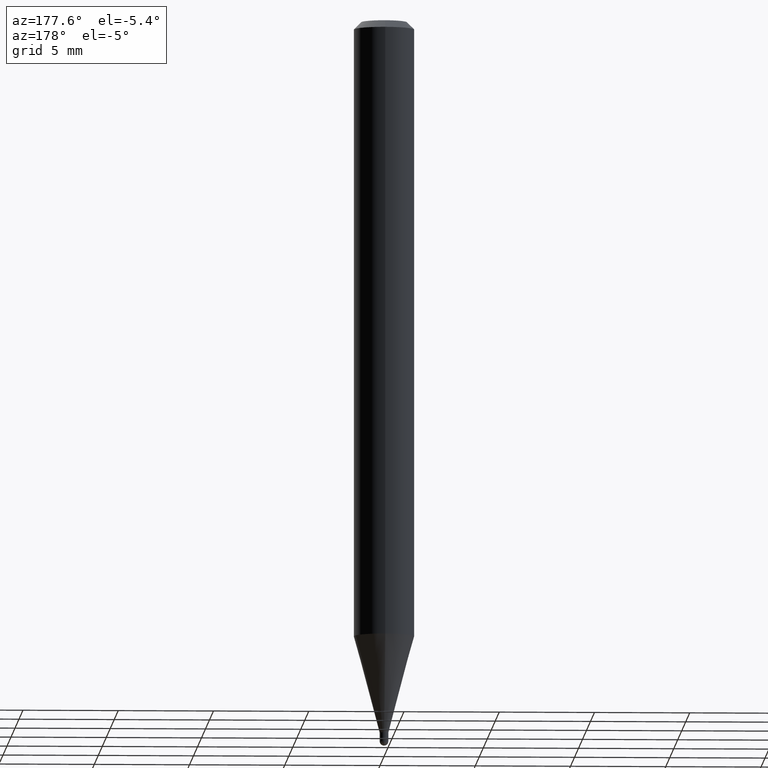
[diagram: clean part render]
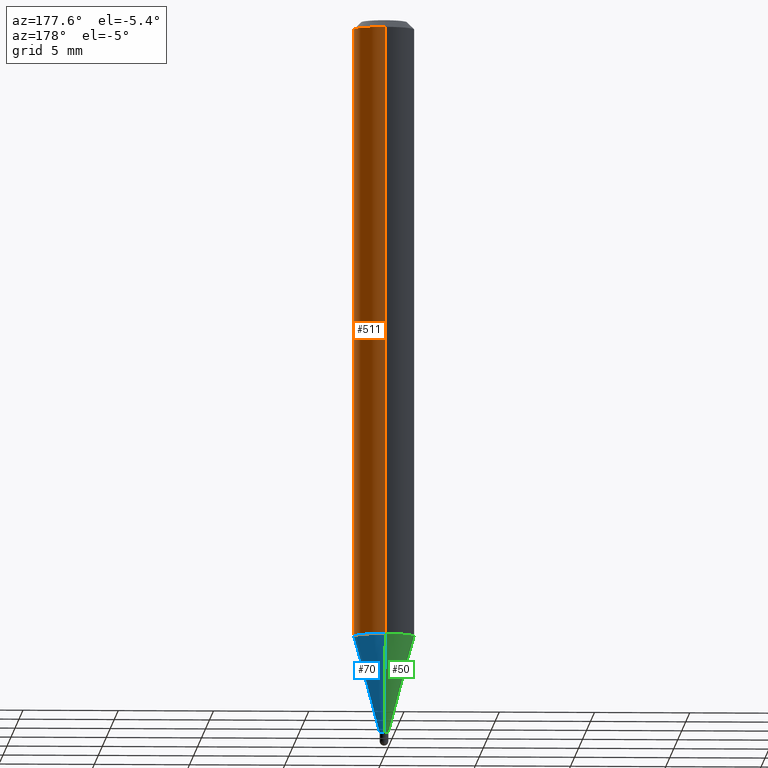
[diagram: same view with three faces highlighted in distinct colors, each labeled with its STEP entity id]
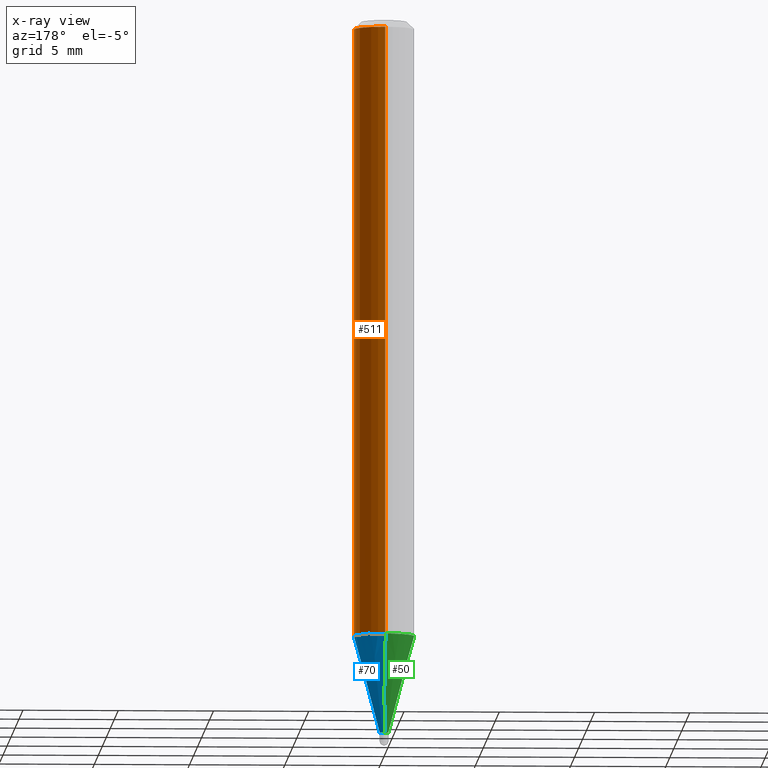
[diagram: x-ray of the same camera — body ghosted, the three highlighted faces saturated]
A machine part, auxiliary view with three faces highlighted in distinct colors.
The next image is the same camera in x-ray (body ghosted, the three faces saturated) — at least one of them is partly hidden behind the body in this view.
Their STEP definitions:

[orange] entity #511 — the highlighted cylindrical surface (edge-blend (fillet) strip) has radius 1.5875 mm, axis along (-0, 0, 1).
#21 = DIRECTION ( 'NONE',  ( -6.982962677686265922E-15, -1.000000000000000000, 3.483106191921935554E-15 ) ) ;
#27 = CIRCLE ( 'NONE', #425, 0.06250000000000000000 ) ;
#47 = CARTESIAN_POINT ( 'NONE',  ( 0.000000000000000000, 0.000000000000000000, 0.000000000000000000 ) ) ;
#65 = CIRCLE ( 'NONE', #361, 0.06250000000000000000 ) ;
#87 = FACE_OUTER_BOUND ( 'NONE', #127, .T. ) ;
#98 = EDGE_CURVE ( 'NONE', #103, #324, #266, .T. ) ;
#99 = CARTESIAN_POINT ( 'NONE',  ( 4.440892098500935790E-16, 0.06249999999999554523, -1.273335281795072493 ) ) ;
#103 = VERTEX_POINT ( 'NONE', #507 ) ;
#107 = DIRECTION ( 'NONE',  ( -2.445461654615416664E-29, 3.491491580298026496E-15, 1.000000000000000000 ) ) ;
#118 = CARTESIAN_POINT ( 'NONE',  ( -4.364351673553912750E-16, -0.06250000000000005551, -0.01499999999999984852 ) ) ;
#127 = EDGE_LOOP ( 'NONE', ( #375, #129, #459, #261 ) ) ;
#129 = ORIENTED_EDGE ( 'NONE', *, *, #376, .T. ) ;
#175 = AXIS2_PLACEMENT_3D ( 'NONE', #47, #210, #370 ) ;
#210 = DIRECTION ( 'NONE',  ( -2.445461654615416664E-29, 3.491491580298026496E-15, 1.000000000000000000 ) ) ;
#214 = DIRECTION ( 'NONE',  ( -2.445461654615416664E-29, 3.491491580298026496E-15, 1.000000000000000000 ) ) ;
#247 = CYLINDRICAL_SURFACE ( 'NONE', #175, 0.06250000000000000000 ) ;
#248 = DIRECTION ( 'NONE',  ( -2.445461654615416664E-29, 3.491491580298026496E-15, 1.000000000000000000 ) ) ;
#258 = EDGE_CURVE ( 'NONE', #103, #496, #27, .T. ) ;
#261 = ORIENTED_EDGE ( 'NONE', *, *, #98, .F. ) ;
#266 = LINE ( 'NONE', #304, #492 ) ;
#282 = DIRECTION ( 'NONE',  ( -6.982962677686265922E-15, -1.000000000000000000, 4.370956789862821150E-15 ) ) ;
#304 = CARTESIAN_POINT ( 'NONE',  ( -4.364351673553916201E-16, -0.06250000000000000000, 2.182182237686266560E-16 ) ) ;
#322 = DIRECTION ( 'NONE',  ( -2.445461654615416664E-29, 3.491491580298026496E-15, 1.000000000000000000 ) ) ;
#324 = VERTEX_POINT ( 'NONE', #118 ) ;
#334 = CARTESIAN_POINT ( 'NONE',  ( 4.440892098500625669E-16, 0.06250000000000000000, -2.182182237686266560E-16 ) ) ;
#361 = AXIS2_PLACEMENT_3D ( 'NONE', #499, #248, #21 ) ;
#370 = DIRECTION ( 'NONE',  ( -6.982962677686265922E-15, -1.000000000000000000, 3.491491580298026496E-15 ) ) ;
#375 = ORIENTED_EDGE ( 'NONE', *, *, #258, .T. ) ;
#376 = EDGE_CURVE ( 'NONE', #496, #485, #421, .T. ) ;
#396 = CARTESIAN_POINT ( 'NONE',  ( 3.113892605098765118E-29, -4.445839415283910039E-15, -1.273335281795072271 ) ) ;
#409 = CARTESIAN_POINT ( 'NONE',  ( 4.440892098500938748E-16, 0.06249999999999995143, -0.01500000000000028394 ) ) ;
#421 = LINE ( 'NONE', #334, #478 ) ;
#425 = AXIS2_PLACEMENT_3D ( 'NONE', #396, #322, #282 ) ;
#455 = EDGE_CURVE ( 'NONE', #324, #485, #65, .T. ) ;
#459 = ORIENTED_EDGE ( 'NONE', *, *, #455, .F. ) ;
#478 = VECTOR ( 'NONE', #214, 39.37007874015748143 ) ;
#485 = VERTEX_POINT ( 'NONE', #409 ) ;
#492 = VECTOR ( 'NONE', #107, 39.37007874015748143 ) ;
#496 = VERTEX_POINT ( 'NONE', #99 ) ;
#499 = CARTESIAN_POINT ( 'NONE',  ( 3.668192481923141303E-31, -5.237237370447062670E-17, -0.01500000000000006710 ) ) ;
#507 = CARTESIAN_POINT ( 'NONE',  ( -4.364351673553605587E-16, -0.06250000000000444089, -1.273335281795072049 ) ) ;
#511 = ADVANCED_FACE ( 'NONE', ( #87 ), #247, .T. ) ;

[blue] entity #70 — the highlighted conical surface has half-angle 15 deg.
#27 = CIRCLE ( 'NONE', #425, 0.06250000000000000000 ) ;
#55 = DIRECTION ( 'NONE',  ( -6.982962677686265133E-15, -1.000000000000000000, 0.000000000000000000 ) ) ;
#56 = CONICAL_SURFACE ( 'NONE', #295, 0.009000000000000197078, 0.2617993877991573459 ) ;
#58 = CARTESIAN_POINT ( 'NONE',  ( 6.394884621844643349E-17, 0.008999999999995053623, -1.473000000000000087 ) ) ;
#70 = ADVANCED_FACE ( 'NONE', ( #348 ), #56, .T. ) ;
#81 = EDGE_CURVE ( 'NONE', #303, #419, #94, .T. ) ;
#94 = CIRCLE ( 'NONE', #196, 0.009000000000000197078 ) ;
#99 = CARTESIAN_POINT ( 'NONE',  ( 4.440892098500935790E-16, 0.06249999999999554523, -1.273335281795072493 ) ) ;
#103 = VERTEX_POINT ( 'NONE', #507 ) ;
#108 = VECTOR ( 'NONE', #296, 39.37007874015748143 ) ;
#130 = LINE ( 'NONE', #176, #297 ) ;
#135 = CARTESIAN_POINT ( 'NONE',  ( 2.540190280342702096E-16, 0.008999999999995053623, -1.473000000000000087 ) ) ;
#139 = DIRECTION ( 'NONE',  ( -2.445461654615416664E-29, 3.491491580298026496E-15, 1.000000000000000000 ) ) ;
#176 = CARTESIAN_POINT ( 'NONE',  ( -6.284666409914174820E-17, -0.009000000000005338799, -1.473000000000000087 ) ) ;
#179 = LINE ( 'NONE', #58, #108 ) ;
#196 = AXIS2_PLACEMENT_3D ( 'NONE', #252, #221, #55 ) ;
#221 = DIRECTION ( 'NONE',  ( -2.445461654615416664E-29, 3.491491580298026496E-15, 1.000000000000000000 ) ) ;
#227 = ORIENTED_EDGE ( 'NONE', *, *, #258, .F. ) ;
#229 = ORIENTED_EDGE ( 'NONE', *, *, #388, .F. ) ;
#243 = ORIENTED_EDGE ( 'NONE', *, *, #494, .T. ) ;
#252 = CARTESIAN_POINT ( 'NONE',  ( 3.602165017248509387E-29, -5.142967097778992648E-15, -1.473000000000000087 ) ) ;
#255 = EDGE_LOOP ( 'NONE', ( #479, #243, #227, #229 ) ) ;
#258 = EDGE_CURVE ( 'NONE', #103, #496, #27, .T. ) ;
#282 = DIRECTION ( 'NONE',  ( -6.982962677686265922E-15, -1.000000000000000000, 4.370956789862821150E-15 ) ) ;
#295 = AXIS2_PLACEMENT_3D ( 'NONE', #424, #139, #460 ) ;
#296 = DIRECTION ( 'NONE',  ( 1.839019923739648830E-15, 0.2588190451025317862, 0.9659258262890653146 ) ) ;
#297 = VECTOR ( 'NONE', #340, 39.37007874015748854 ) ;
#303 = VERTEX_POINT ( 'NONE', #319 ) ;
#319 = CARTESIAN_POINT ( 'NONE',  ( -6.284666409914174820E-17, -0.009000000000005338799, -1.473000000000000087 ) ) ;
#322 = DIRECTION ( 'NONE',  ( -2.445461654615416664E-29, 3.491491580298026496E-15, 1.000000000000000000 ) ) ;
#340 = DIRECTION ( 'NONE',  ( -1.807323732225377865E-15, -0.2588190451025250138, 0.9659258262890670910 ) ) ;
#348 = FACE_OUTER_BOUND ( 'NONE', #255, .T. ) ;
#388 = EDGE_CURVE ( 'NONE', #303, #103, #130, .T. ) ;
#396 = CARTESIAN_POINT ( 'NONE',  ( 3.113892605098765118E-29, -4.445839415283910039E-15, -1.273335281795072271 ) ) ;
#419 = VERTEX_POINT ( 'NONE', #135 ) ;
#424 = CARTESIAN_POINT ( 'NONE',  ( 3.602165017248509387E-29, -5.142967097778992648E-15, -1.473000000000000087 ) ) ;
#425 = AXIS2_PLACEMENT_3D ( 'NONE', #396, #322, #282 ) ;
#460 = DIRECTION ( 'NONE',  ( -6.982962677686265133E-15, -1.000000000000000000, 0.000000000000000000 ) ) ;
#479 = ORIENTED_EDGE ( 'NONE', *, *, #81, .T. ) ;
#494 = EDGE_CURVE ( 'NONE', #419, #496, #179, .T. ) ;
#496 = VERTEX_POINT ( 'NONE', #99 ) ;
#507 = CARTESIAN_POINT ( 'NONE',  ( -4.364351673553605587E-16, -0.06250000000000444089, -1.273335281795072049 ) ) ;

[green] entity #50 — the highlighted conical surface has half-angle 15 deg.
#2 = DIRECTION ( 'NONE',  ( -2.445461654615416664E-29, 3.491491580298026496E-15, 1.000000000000000000 ) ) ;
#50 = ADVANCED_FACE ( 'NONE', ( #372 ), #351, .T. ) ;
#58 = CARTESIAN_POINT ( 'NONE',  ( 6.394884621844643349E-17, 0.008999999999995053623, -1.473000000000000087 ) ) ;
#74 = CARTESIAN_POINT ( 'NONE',  ( 3.113892605098765118E-29, -4.445839415283910039E-15, -1.273335281795072271 ) ) ;
#90 = CARTESIAN_POINT ( 'NONE',  ( 3.602165017248509387E-29, -5.142967097778992648E-15, -1.473000000000000087 ) ) ;
#99 = CARTESIAN_POINT ( 'NONE',  ( 4.440892098500935790E-16, 0.06249999999999554523, -1.273335281795072493 ) ) ;
#103 = VERTEX_POINT ( 'NONE', #507 ) ;
#106 = EDGE_LOOP ( 'NONE', ( #328, #341, #428, #298 ) ) ;
#108 = VECTOR ( 'NONE', #296, 39.37007874015748143 ) ;
#130 = LINE ( 'NONE', #176, #297 ) ;
#135 = CARTESIAN_POINT ( 'NONE',  ( 2.540190280342702096E-16, 0.008999999999995053623, -1.473000000000000087 ) ) ;
#156 = EDGE_CURVE ( 'NONE', #496, #103, #367, .T. ) ;
#159 = CIRCLE ( 'NONE', #287, 0.009000000000000197078 ) ;
#166 = DIRECTION ( 'NONE',  ( -6.982962677686265133E-15, -1.000000000000000000, 0.000000000000000000 ) ) ;
#169 = CARTESIAN_POINT ( 'NONE',  ( 3.602165017248509387E-29, -5.142967097778992648E-15, -1.473000000000000087 ) ) ;
#176 = CARTESIAN_POINT ( 'NONE',  ( -6.284666409914174820E-17, -0.009000000000005338799, -1.473000000000000087 ) ) ;
#179 = LINE ( 'NONE', #58, #108 ) ;
#215 = DIRECTION ( 'NONE',  ( -2.445461654615416664E-29, 3.491491580298026496E-15, 1.000000000000000000 ) ) ;
#270 = DIRECTION ( 'NONE',  ( -6.982962677686265922E-15, -1.000000000000000000, 4.370956789862821150E-15 ) ) ;
#273 = AXIS2_PLACEMENT_3D ( 'NONE', #74, #2, #270 ) ;
#279 = AXIS2_PLACEMENT_3D ( 'NONE', #169, #335, #166 ) ;
#287 = AXIS2_PLACEMENT_3D ( 'NONE', #90, #215, #343 ) ;
#296 = DIRECTION ( 'NONE',  ( 1.839019923739648830E-15, 0.2588190451025317862, 0.9659258262890653146 ) ) ;
#297 = VECTOR ( 'NONE', #340, 39.37007874015748854 ) ;
#298 = ORIENTED_EDGE ( 'NONE', *, *, #156, .F. ) ;
#303 = VERTEX_POINT ( 'NONE', #319 ) ;
#319 = CARTESIAN_POINT ( 'NONE',  ( -6.284666409914174820E-17, -0.009000000000005338799, -1.473000000000000087 ) ) ;
#328 = ORIENTED_EDGE ( 'NONE', *, *, #494, .F. ) ;
#335 = DIRECTION ( 'NONE',  ( -2.445461654615416664E-29, 3.491491580298026496E-15, 1.000000000000000000 ) ) ;
#340 = DIRECTION ( 'NONE',  ( -1.807323732225377865E-15, -0.2588190451025250138, 0.9659258262890670910 ) ) ;
#341 = ORIENTED_EDGE ( 'NONE', *, *, #433, .T. ) ;
#343 = DIRECTION ( 'NONE',  ( -6.982962677686265133E-15, -1.000000000000000000, 0.000000000000000000 ) ) ;
#351 = CONICAL_SURFACE ( 'NONE', #279, 0.009000000000000197078, 0.2617993877991573459 ) ;
#367 = CIRCLE ( 'NONE', #273, 0.06250000000000000000 ) ;
#372 = FACE_OUTER_BOUND ( 'NONE', #106, .T. ) ;
#388 = EDGE_CURVE ( 'NONE', #303, #103, #130, .T. ) ;
#419 = VERTEX_POINT ( 'NONE', #135 ) ;
#428 = ORIENTED_EDGE ( 'NONE', *, *, #388, .T. ) ;
#433 = EDGE_CURVE ( 'NONE', #419, #303, #159, .T. ) ;
#494 = EDGE_CURVE ( 'NONE', #419, #496, #179, .T. ) ;
#496 = VERTEX_POINT ( 'NONE', #99 ) ;
#507 = CARTESIAN_POINT ( 'NONE',  ( -4.364351673553605587E-16, -0.06250000000000444089, -1.273335281795072049 ) ) ;